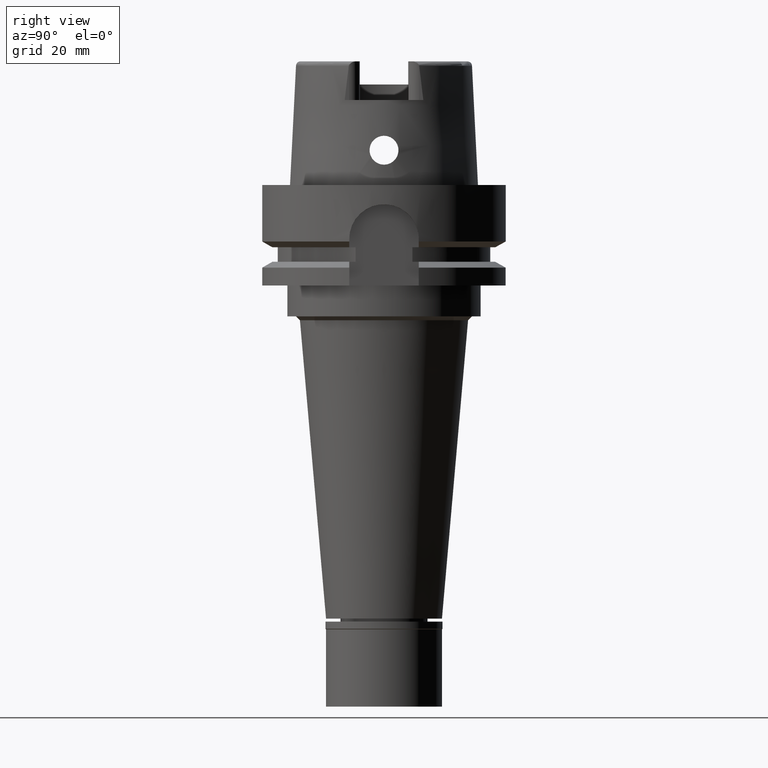
[diagram: clean part render]
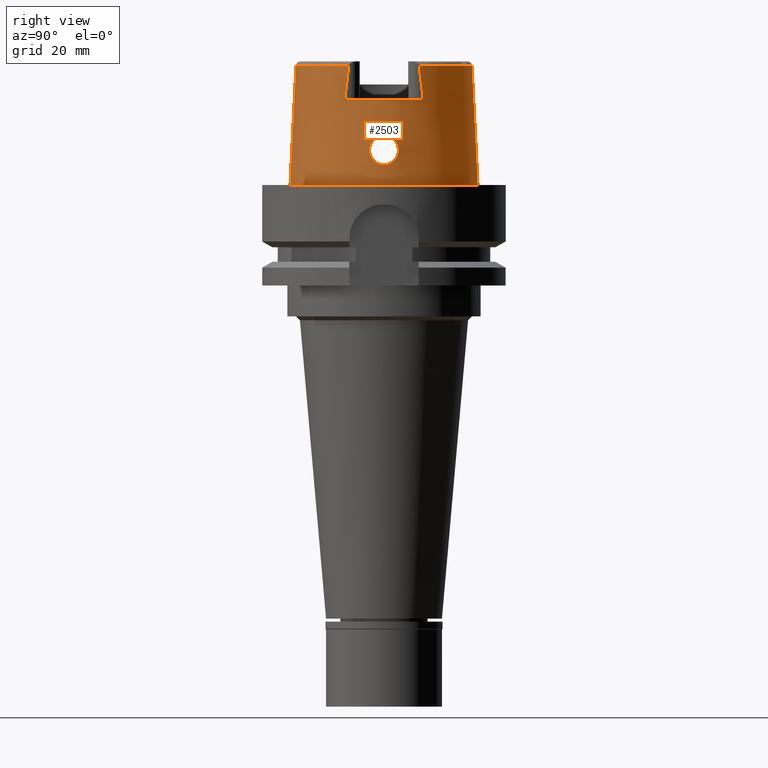
[diagram: same view with one face highlighted and labeled with its STEP entity id]
A machine part, right view. The second image highlights one B-rep face of the part: STEP entity #2503.
In plain terms, the highlighted conical surface has half-angle 2.862 deg.
Its self-contained STEP definition (entity closure, byte-faithful):
#67 = CARTESIAN_POINT ( 'NONE',  ( 20.87000000000000099, 10.16755860605000095, 22.00000000000000000 ) ) ;
#68 = VERTEX_POINT ( 'NONE', #2163 ) ;
#100 = DIRECTION ( 'NONE',  ( 0.0000000000000000000, 0.0000000000000000000, -1.000000000000000000 ) ) ;
#124 = CARTESIAN_POINT ( 'NONE',  ( 23.99741052300606725, 1.409557545798486800, 5.524987733621385289 ) ) ;
#153 = CARTESIAN_POINT ( 'NONE',  ( 23.56979158351773762, 3.750036884178498120, 8.975423932546910066 ) ) ;
#182 = CARTESIAN_POINT ( 'NONE',  ( 23.98170386270929910, 1.606147211030262589, 5.605672157478030826 ) ) ;
#195 = CARTESIAN_POINT ( 'NONE',  ( 23.65618161746512982, -1.223503328674441226, 12.54583698877323883 ) ) ;
#204 = CARTESIAN_POINT ( 'NONE',  ( 23.68855773261116227, 3.450345891737976345, 7.530735757492522886 ) ) ;
#213 = EDGE_CURVE ( 'NONE', #3674, #1727, #371, .T. ) ;
#221 = CARTESIAN_POINT ( 'NONE',  ( 23.62000188272170931, -2.035425920932052435, 12.14961753302927150 ) ) ;
#231 = CARTESIAN_POINT ( 'NONE',  ( 23.82389925732656266, 2.813300137743125262, 6.517453740641115267 ) ) ;
#274 = CARTESIAN_POINT ( 'NONE',  ( 23.53728686232629030, -3.562649023846653495, 10.19725586423751906 ) ) ;
#283 = CARTESIAN_POINT ( 'NONE',  ( 23.60286895030067811, 2.335580404643407881, 11.93450531687260785 ) ) ;
#302 = CARTESIAN_POINT ( 'NONE',  ( 23.98860891886405611, -1.516794078512106347, 5.570259398225311465 ) ) ;
#310 = CARTESIAN_POINT ( 'NONE',  ( 23.55631868313840371, 3.749673725861495388, 9.242500227184164530 ) ) ;
#331 = CARTESIAN_POINT ( 'NONE',  ( 23.65218525758844592, -3.578295389610691490, 7.876444168300636761 ) ) ;
#355 = EDGE_CURVE ( 'NONE', #68, #2626, #508, .T. ) ;
#361 = CARTESIAN_POINT ( 'NONE',  ( 0.002481821280839999633, 22.77198688789000158, 30.85992712280000205 ) ) ;
#364 = CARTESIAN_POINT ( 'NONE',  ( 23.83799574183585079, -2.727673456138496100, 6.426295646156834351 ) ) ;
#371 = B_SPLINE_CURVE_WITH_KNOTS ( 'NONE', 3,
 ( #1543, #3997, #1094, #3203, #4852, #3124, #195, #4776, #3569, #616, #3943, #4881, #4418, #669, #643, #2707, #1849, #4367, #221, #3592, #4023, #1431, #5276, #2814, #4474, #591, #2295, #1883, #3544, #5221, #1460, #2732, #3151, #4803, #1039, #4393, #1598, #2017, #2074, #2105, #2898, #274, #4106, #3751, #3669, #3309, #5418, #394, #4587, #2403, #5445, #4969, #3644, #4908, #331, #2462, #1152, #1211, #754, #3696, #4995, #1265, #4164, #1990, #3256, #2436, #5364, #1684, #5391, #2049, #4533, #2848, #4559, #3284, #1630, #364, #782, #5333, #4944, #1180, #4503, #2491, #2872, #729, #2950, #302, #4615, #4135, #1659, #3725, #4079, #1567, #3331 ),
 .UNSPECIFIED., .F., .F.,
 ( 4, 2, 2, 1, 1, 1, 2, 2, 2, 2, 1, 1, 2, 2, 2, 1, 1, 2, 2, 2, 2, 1, 1, 1, 2, 2, 2, 2, 1, 2, 2, 2, 2, 1, 1, 1, 2, 2, 2, 2, 1, 1, 2, 2, 2, 1, 1, 2, 2, 2, 2, 1, 1, 1, 2, 2, 4 ),
 ( 0.0000000000000000000, 0.06249999999999586442, 0.09374999999999376887, 0.1093749999999926725, 0.1171874999999920758, 0.1210937499999918121, 0.1230468749999916872, 0.1249999999999915762, 0.1562499999999886202, 0.1718749999999871214, 0.1796874999999863998, 0.1835937499999858724, 0.1855468749999855949, 0.1874999999999852895, 0.2187499999999829026, 0.2343749999999816536, 0.2421874999999809597, 0.2460937499999804878, 0.2499999999999800437, 0.3124999999999716893, 0.3437499999999674705, 0.3593749999999655831, 0.3671874999999648059, 0.3710937499999644729, 0.3730468749999645284, 0.3749999999999646394, 0.4374999999999668043, 0.4687499999999680256, 0.4843749999999686917, 0.4921874999999691913, 0.4999999999999696909, 0.5624999999999723554, 0.5937499999999736877, 0.6093749999999744649, 0.6171874999999747979, 0.6210937499999750200, 0.6230468749999751310, 0.6249999999999751310, 0.6562499999999756861, 0.6718749999999757971, 0.6796874999999757971, 0.6835937499999759082, 0.6855468749999759082, 0.6874999999999760192, 0.7187499999999791278, 0.7343749999999805711, 0.7421874999999812372, 0.7460937499999815703, 0.7499999999999820144, 0.8124999999999884537, 0.8437499999999915623, 0.8593749999999932276, 0.8671874999999940048, 0.8710937499999944489, 0.8730468749999945599, 0.8749999999999945599, 1.000000000000000000 ),
 .UNSPECIFIED. ) ;
#394 = CARTESIAN_POINT ( 'NONE',  ( 23.56278099270956616, -3.748201672074407131, 9.119866509858711723 ) ) ;
#475 = ORIENTED_EDGE ( 'NONE', *, *, #355, .F. ) ;
#508 = B_SPLINE_CURVE_WITH_KNOTS ( 'NONE', 3,
 ( #1013, #4753, #3415, #3918 ),
 .UNSPECIFIED., .F., .F.,
 ( 4, 4 ),
 ( 0.0000000000000000000, 1.000000000000000000 ),
 .UNSPECIFIED. ) ;
#529 = CONICAL_SURFACE ( 'NONE', #3605, 23.54351105844999736, 0.04996004983832824653 ) ;
#575 = CARTESIAN_POINT ( 'NONE',  ( 23.65754914882854010, 3.566084928893071826, 7.809417686864742691 ) ) ;
#591 = CARTESIAN_POINT ( 'NONE',  ( 23.59335130442918071, -2.500895128699275105, 11.79546913096707428 ) ) ;
#616 = CARTESIAN_POINT ( 'NONE',  ( 23.64936481907054855, -1.407256274803444285, 12.47594562090911730 ) ) ;
#627 = CARTESIAN_POINT ( 'NONE',  ( 23.85936835845046744, 2.596971949325992401, 6.294668982619858966 ) ) ;
#643 = CARTESIAN_POINT ( 'NONE',  ( 23.63217484651149647, -1.797778674615635675, 12.29154642699170097 ) ) ;
#654 = EDGE_CURVE ( 'NONE', #1938, #2626, #1885, .T. ) ;
#669 = CARTESIAN_POINT ( 'NONE',  ( 23.63992076726151481, -1.634345342748828589, 12.37735983815962371 ) ) ;
#677 = ORIENTED_EDGE ( 'NONE', *, *, #4184, .T. ) ;
#678 = CARTESIAN_POINT ( 'NONE',  ( 23.54795101418594072, 3.726731211790008658, 9.483740643491037403 ) ) ;
#729 = CARTESIAN_POINT ( 'NONE',  ( 23.97390213269369141, -1.680134168139940432, 5.646949681227922291 ) ) ;
#735 = CARTESIAN_POINT ( 'NONE',  ( 23.62817011169800097, 1.885504624516870953, 12.24383662026350272 ) ) ;
#754 = CARTESIAN_POINT ( 'NONE',  ( 23.68088708443411505, -3.478847398744863817, 7.599932335996524735 ) ) ;
#782 = CARTESIAN_POINT ( 'NONE',  ( 23.84336134369346993, -2.695658929912994939, 6.393055510157075183 ) ) ;
#792 = CARTESIAN_POINT ( 'NONE',  ( 23.63968805518191374, 1.640290316339456433, 12.37324556414428933 ) ) ;
#932 = CARTESIAN_POINT ( 'NONE',  ( 24.05252611746999847, 0.0000000000000000000, 5.250000000000000000 ) ) ;
#961 = CARTESIAN_POINT ( 'NONE',  ( 23.99669686191764484, 1.418549355557610525, 5.528652208453263661 ) ) ;
#991 = CARTESIAN_POINT ( 'NONE',  ( 23.79537487801156104, 2.969081839856313465, 6.708526363462557818 ) ) ;
#1013 = CARTESIAN_POINT ( 'NONE',  ( 20.87000527243999670, -9.110771420352000050, 30.85992623711999983 ) ) ;
#1024 = ORIENTED_EDGE ( 'NONE', *, *, #2031, .F. ) ;
#1039 = CARTESIAN_POINT ( 'NONE',  ( 23.54351736285887853, -3.352606904099580287, 10.68101992700658620 ) ) ;
#1047 = CARTESIAN_POINT ( 'NONE',  ( 23.71825165375690148, 3.331218674133720636, 7.276832086030188940 ) ) ;
#1079 = CARTESIAN_POINT ( 'NONE',  ( 23.57913388135730770, 3.745727953488152462, 8.805494264415404615 ) ) ;
#1094 = CARTESIAN_POINT ( 'NONE',  ( 23.67506699233743106, -0.4637114333028086732, 12.72933735181869608 ) ) ;
#1096 = CARTESIAN_POINT ( 'NONE',  ( 0.0000000000000000000, 24.31503482328999866, -7.389644451905000534E-13 ) ) ;
#1105 = CARTESIAN_POINT ( 'NONE',  ( 23.55727292430831454, 3.089654960027925501, 11.12871882642762422 ) ) ;
#1152 = CARTESIAN_POINT ( 'NONE',  ( 23.67256478189325364, -3.509053511853261309, 7.676768709800048995 ) ) ;
#1161 = CARTESIAN_POINT ( 'NONE',  ( 23.64333745458698743, 1.554894452985534192, 12.41259331056408932 ) ) ;
#1180 = CARTESIAN_POINT ( 'NONE',  ( 23.88313405248300114, -2.454470983817845120, 6.151043544537373897 ) ) ;
#1211 = CARTESIAN_POINT ( 'NONE',  ( 23.67836587817247107, -3.488093159791483711, 7.622979706065718730 ) ) ;
#1219 = CARTESIAN_POINT ( 'NONE',  ( 23.67751368057999883, 0.0000000000000000000, 12.75000000000000000 ) ) ;
#1242 = CARTESIAN_POINT ( 'NONE',  ( 23.67751368057999883, 0.0000000000000000000, 12.75000000000000000 ) ) ;
#1265 = CARTESIAN_POINT ( 'NONE',  ( 23.69493469860936941, -3.426660438893187610, 7.473140576681614355 ) ) ;
#1319 = CARTESIAN_POINT ( 'NONE',  ( 20.87000000000000099, 10.16755860605000095, 22.00000000000000000 ) ) ;
#1347 = CARTESIAN_POINT ( 'NONE',  ( 0.0000000000000000000, 0.0000000000000000000, 15.42996356139999925 ) ) ;
#1370 = FACE_OUTER_BOUND ( 'NONE', #2990, .T. ) ;
#1430 = CARTESIAN_POINT ( 'NONE',  ( 0.0000000000000000000, 0.0000000000000000000, -7.389644451905000534E-13 ) ) ;
#1431 = CARTESIAN_POINT ( 'NONE',  ( 23.61751962360115797, -2.081209400607333837, 12.11947536603371134 ) ) ;
#1460 = CARTESIAN_POINT ( 'NONE',  ( 23.57093148059700027, -2.851312322137704136, 11.45125664498585927 ) ) ;
#1464 = CARTESIAN_POINT ( 'NONE',  ( 0.0000000000000000000, -22.77198729362000051, 30.85992712280000205 ) ) ;
#1471 = CARTESIAN_POINT ( 'NONE',  ( 23.80252444912367338, 2.931015324959349133, 6.660032572112591254 ) ) ;
#1493 = CARTESIAN_POINT ( 'NONE',  ( 24.03376492118275820, 0.8302503275804989924, 5.341037634394288247 ) ) ;
#1527 = CARTESIAN_POINT ( 'NONE',  ( 23.87245292111339978, 2.511601212713352904, 6.215112261055378617 ) ) ;
#1543 = CARTESIAN_POINT ( 'NONE',  ( 23.67751368057999883, 0.0000000000000000000, 12.75000000000000000 ) ) ;
#1551 = CARTESIAN_POINT ( 'NONE',  ( 23.58283423382094313, 2.667714300202540301, 11.63550400016476694 ) ) ;
#1557 = VERTEX_POINT ( 'NONE', #3416 ) ;
#1567 = CARTESIAN_POINT ( 'NONE',  ( 24.05252611746999492, -0.4682035850658039511, 5.249999999999996447 ) ) ;
#1579 = CARTESIAN_POINT ( 'NONE',  ( 23.58205150924872129, 2.680327882225578939, 11.62267484949121688 ) ) ;
#1589 = VERTEX_POINT ( 'NONE', #1464 ) ;
#1593 = LINE ( 'NONE', #361, #1665 ) ;
#1598 = CARTESIAN_POINT ( 'NONE',  ( 23.54069510199738957, -3.429599916486623101, 10.51711702627600076 ) ) ;
#1604 = VERTEX_POINT ( 'NONE', #3495 ) ;
#1606 = CARTESIAN_POINT ( 'NONE',  ( 23.56910458896344451, 2.890915830154841437, 11.38946705694332451 ) ) ;
#1630 = CARTESIAN_POINT ( 'NONE',  ( 23.82549211477736151, -2.800933865507947651, 6.505226040571943535 ) ) ;
#1635 = CIRCLE ( 'NONE', #2955, 22.77198729362001117 ) ;
#1640 = CARTESIAN_POINT ( 'NONE',  ( 23.62277832711500380, 1.989117033354610209, 12.18120502760653423 ) ) ;
#1659 = CARTESIAN_POINT ( 'NONE',  ( 23.99475839488865603, -1.442550788870264888, 5.538556383455324195 ) ) ;
#1663 = ORIENTED_EDGE ( 'NONE', *, *, #3399, .T. ) ;
#1665 = VECTOR ( 'NONE', #2893, 1000.000000000000000 ) ;
#1670 = ORIENTED_EDGE ( 'NONE', *, *, #3555, .F. ) ;
#1684 = CARTESIAN_POINT ( 'NONE',  ( 23.75809613586264035, -3.153638958302001249, 6.970814125703146402 ) ) ;
#1727 = VERTEX_POINT ( 'NONE', #932 ) ;
#1831 = CARTESIAN_POINT ( 'NONE',  ( 23.85626869006080852, 2.616580360091303348, 6.313721774121626495 ) ) ;
#1849 = CARTESIAN_POINT ( 'NONE',  ( 23.62502149924458905, -1.940117837755635621, 12.20929256187719147 ) ) ;
#1873 = VECTOR ( 'NONE', #2103, 1000.000000000000000 ) ;
#1883 = CARTESIAN_POINT ( 'NONE',  ( 23.58633481952916355, -2.612806086781061854, 11.68997785618207885 ) ) ;
#1885 = CIRCLE ( 'NONE', #3370, 23.21499834174998966 ) ;
#1894 = CARTESIAN_POINT ( 'NONE',  ( 23.91319098594624037, 2.220985600379818070, 5.975451582844085507 ) ) ;
#1938 = VERTEX_POINT ( 'NONE', #67 ) ;
#1941 = CARTESIAN_POINT ( 'NONE',  ( 23.86650366459252481, 2.551096030938110548, 6.251058165383954979 ) ) ;
#1977 = CARTESIAN_POINT ( 'NONE',  ( 0.0000000000000000000, -24.31503482328999866, -3.410605131648000255E-13 ) ) ;
#1990 = CARTESIAN_POINT ( 'NONE',  ( 23.72722208280240608, -3.293879360053062921, 7.206501332572136320 ) ) ;
#2000 = CARTESIAN_POINT ( 'NONE',  ( 23.53847083392615147, 3.572112042969594725, 10.14297195859395551 ) ) ;
#2017 = CARTESIAN_POINT ( 'NONE',  ( 23.54014370228765785, -3.448436697796323003, 10.47346664705865926 ) ) ;
#2028 = CARTESIAN_POINT ( 'NONE',  ( 23.64687553256864661, 1.469725341914942307, 12.45014572883841986 ) ) ;
#2031 = EDGE_CURVE ( 'NONE', #1938, #1557, #5373, .T. ) ;
#2049 = CARTESIAN_POINT ( 'NONE',  ( 23.76311803917417720, -3.129629745815275310, 6.934087354893087252 ) ) ;
#2051 = DIRECTION ( 'NONE',  ( 0.0000000000000000000, 0.0000000000000000000, -1.000000000000000000 ) ) ;
#2057 = CARTESIAN_POINT ( 'NONE',  ( 23.57602863934530646, 2.777759321683797911, 11.51947629268215856 ) ) ;
#2074 = CARTESIAN_POINT ( 'NONE',  ( 23.53993061427025069, -3.456305277185066416, 10.45481928213091294 ) ) ;
#2082 = CARTESIAN_POINT ( 'NONE',  ( 23.53967749511005536, 3.465959308388742333, 10.43166505040752767 ) ) ;
#2097 = EDGE_CURVE ( 'NONE', #3289, #4821, #4575, .T. ) ;
#2103 = DIRECTION ( 'NONE',  ( 8.032179027582384478E-05, -0.04993928193351242217, -0.9987522523971473776 ) ) ;
#2105 = CARTESIAN_POINT ( 'NONE',  ( 23.53979371695728773, -3.461505962224951105, 10.44240139567263270 ) ) ;
#2134 = DIRECTION ( 'NONE',  ( 0.8989877876694615244, 0.4379736951246811505, 0.0000000000000000000 ) ) ;
#2163 = CARTESIAN_POINT ( 'NONE',  ( 20.87000527243999670, -9.110771420352000050, 30.85992623711999983 ) ) ;
#2187 = DIRECTION ( 'NONE',  ( 0.0000000000000000000, -1.000000000000000000, 0.0000000000000000000 ) ) ;
#2251 = CARTESIAN_POINT ( 'NONE',  ( 24.02790204734300517, 0.9499289938177079007, 5.370180686946912196 ) ) ;
#2279 = CARTESIAN_POINT ( 'NONE',  ( 23.57120184079807146, 3.749755573837370459, 8.948554177804135534 ) ) ;
#2295 = CARTESIAN_POINT ( 'NONE',  ( 23.58844020497475924, -2.579644544118255389, 11.72205615858604766 ) ) ;
#2332 = EDGE_CURVE ( 'NONE', #1589, #3289, #3380, .T. ) ;
#2335 = CARTESIAN_POINT ( 'NONE',  ( 23.92638814724481122, 2.115561554813299328, 5.901300326533409191 ) ) ;
#2370 = DIRECTION ( 'NONE',  ( 0.0000000000000000000, 0.0000000000000000000, -1.000000000000000000 ) ) ;
#2385 = CARTESIAN_POINT ( 'NONE',  ( 23.53924988573291088, 3.484413238315576145, 10.38628969556312498 ) ) ;
#2403 = CARTESIAN_POINT ( 'NONE',  ( 23.56707827843494130, -3.749991273092522892, 9.029127254930608970 ) ) ;
#2436 = CARTESIAN_POINT ( 'NONE',  ( 23.74548095048756124, -3.212431580616287086, 7.065089212975846245 ) ) ;
#2462 = CARTESIAN_POINT ( 'NONE',  ( 23.66128946265986954, -3.548542694519893015, 7.784353515451841510 ) ) ;
#2491 = CARTESIAN_POINT ( 'NONE',  ( 23.94785029665017007, -1.936134681749981823, 5.786112351796959707 ) ) ;
#2499 = CARTESIAN_POINT ( 'NONE',  ( 23.64574116981760454, 1.497417026802877915, 12.43820187177436765 ) ) ;
#2503 = ADVANCED_FACE ( 'NONE', ( #1370, #3859 ), #529, .T. ) ;
#2626 = VERTEX_POINT ( 'NONE', #4772 ) ;
#2656 = CARTESIAN_POINT ( 'NONE',  ( 20.87000000000000099, 9.459419187967647247, 28.07088142031913591 ) ) ;
#2666 = CARTESIAN_POINT ( 'NONE',  ( 23.85419298223590445, 2.629639852072348294, 6.326504584623962479 ) ) ;
#2691 = CARTESIAN_POINT ( 'NONE',  ( 23.59610519306026788, 3.723760955760621272, 8.541686959841060300 ) ) ;
#2707 = CARTESIAN_POINT ( 'NONE',  ( 23.62941826960100755, -1.853894653924990088, 12.26037398169900605 ) ) ;
#2715 = CARTESIAN_POINT ( 'NONE',  ( 24.05252611746999847, 0.0000000000000000000, 5.250000000000000000 ) ) ;
#2732 = CARTESIAN_POINT ( 'NONE',  ( 23.56097843016044280, -3.013414991673339038, 11.24542846782674843 ) ) ;
#2770 = CARTESIAN_POINT ( 'NONE',  ( 24.05252611746999136, 0.2332082558146014728, 5.249999999999998224 ) ) ;
#2798 = CARTESIAN_POINT ( 'NONE',  ( 23.54081187450104551, 3.655762180319634957, 9.844340283723550300 ) ) ;
#2814 = CARTESIAN_POINT ( 'NONE',  ( 23.60596895125004835, -2.288633734427802047, 11.97317885727141551 ) ) ;
#2848 = CARTESIAN_POINT ( 'NONE',  ( 23.77928022297826161, -3.051549592981439574, 6.816953960095912812 ) ) ;
#2872 = CARTESIAN_POINT ( 'NONE',  ( 23.95890165967158936, -1.832947053381541291, 5.726470688664103470 ) ) ;
#2880 = CARTESIAN_POINT ( 'NONE',  ( 23.61434003776745172, 2.137342432453320118, 12.08185095785749574 ) ) ;
#2893 = DIRECTION ( 'NONE',  ( -8.032179027593385064E-05, 0.04993928193351242217, -0.9987522523971473776 ) ) ;
#2898 = CARTESIAN_POINT ( 'NONE',  ( 23.53973886479748501, -3.463638976950670134, 10.43727761456311498 ) ) ;
#2907 = CARTESIAN_POINT ( 'NONE',  ( 23.53944852190178239, 3.475555214846429042, 10.40821807722830883 ) ) ;
#2950 = CARTESIAN_POINT ( 'NONE',  ( 23.98100822632722995, -1.604214797326385389, 5.609672425873479362 ) ) ;
#2955 = AXIS2_PLACEMENT_3D ( 'NONE', #4237, #100, #4267 ) ;
#2990 = EDGE_LOOP ( 'NONE', ( #475, #1663, #3337, #3980, #3873, #677, #1024, #4121 ) ) ;
#3011 = ORIENTED_EDGE ( 'NONE', *, *, #213, .F. ) ;
#3065 = DIRECTION ( 'NONE',  ( 0.0000000000000000000, 0.0000000000000000000, -1.000000000000000000 ) ) ;
#3091 = DIRECTION ( 'NONE',  ( 0.0000000000000000000, -1.000000000000000000, 0.0000000000000000000 ) ) ;
#3107 = CARTESIAN_POINT ( 'NONE',  ( 23.60482830942745025, 3.707230106430950300, 8.421915893668060704 ) ) ;
#3124 = CARTESIAN_POINT ( 'NONE',  ( 23.65916351876075296, -1.131568507320630301, 12.57576969413208801 ) ) ;
#3151 = CARTESIAN_POINT ( 'NONE',  ( 23.55001278306518131, -3.213459767549337265, 10.93680304919830348 ) ) ;
#3160 = CARTESIAN_POINT ( 'NONE',  ( 23.78102646569836409, 3.042778602954726352, 6.807331130309098199 ) ) ;
#3187 = CARTESIAN_POINT ( 'NONE',  ( 24.00419405125347083, 1.321269042240415637, 5.490228995178274118 ) ) ;
#3203 = CARTESIAN_POINT ( 'NONE',  ( 23.66772692760973129, -0.8260351870377574679, 12.65995726942773913 ) ) ;
#3211 = B_SPLINE_CURVE_WITH_KNOTS ( 'NONE', 3,
 ( #2715, #2770, #3924, #1493, #2251, #3553, #3601, #3187, #3528, #3578, #124, #961, #182, #5258, #2335, #1894, #4427, #4006, #1527, #1941, #627, #1831, #2666, #5232, #3895, #231, #1471, #991, #3160, #4812, #5204, #3982, #1047, #3499, #4759, #5287, #204, #575, #5180, #3107, #2691, #4838, #1079, #4348, #2279, #153, #310, #678, #2798, #4060, #2000, #4568, #3676, #2385, #2907, #4455, #2082, #5344, #4512, #1105, #3652, #1606, #4116, #2057, #5374, #4922, #1579, #1551, #3315, #5314, #4033, #283, #3706, #5398, #2880, #1640, #735, #4951, #792, #1161, #2499, #2028, #4977, #3267, #1219 ),
 .UNSPECIFIED., .F., .F.,
 ( 4, 2, 2, 1, 1, 1, 2, 2, 2, 2, 2, 1, 1, 2, 2, 2, 2, 2, 2, 1, 2, 2, 2, 2, 1, 2, 2, 2, 2, 1, 1, 1, 2, 2, 2, 2, 2, 1, 1, 2, 2, 2, 2, 2, 2, 1, 2, 2, 4 ),
 ( 0.0000000000000000000, 0.06249999999999895917, 0.09374999999999845957, 0.1093749999999981543, 0.1171874999999979877, 0.1210937499999979461, 0.1230468749999978767, 0.1249999999999978212, 0.1874999999999976963, 0.2187499999999976130, 0.2343749999999974742, 0.2421874999999974742, 0.2460937499999974465, 0.2480468749999974187, 0.2499999999999973910, 0.2812499999999963363, 0.2968749999999957812, 0.3124999999999952260, 0.3437499999999938938, 0.3593749999999931721, 0.3671874999999929501, 0.3749999999999927280, 0.4374999999999908407, 0.4687499999999901190, 0.4843749999999898415, 0.4921874999999896749, 0.4999999999999895639, 0.5624999999999888978, 0.5937499999999885647, 0.6093749999999886757, 0.6171874999999886757, 0.6210937499999890088, 0.6230468749999888978, 0.6249999999999886757, 0.6874999999999928946, 0.7187499999999951150, 0.7343749999999962252, 0.7421874999999967804, 0.7460937499999968914, 0.7480468749999970024, 0.7499999999999970024, 0.7812499999999977796, 0.7968749999999980016, 0.8124999999999983347, 0.8437499999999987788, 0.8593749999999990008, 0.8671874999999991118, 0.8749999999999992228, 1.000000000000000000 ),
 .UNSPECIFIED. ) ;
#3256 = CARTESIAN_POINT ( 'NONE',  ( 23.73431411231759469, -3.262931481383348764, 7.150631512291119485 ) ) ;
#3267 = CARTESIAN_POINT ( 'NONE',  ( 23.67751368057998818, 0.4544704546232906095, 12.74999999999999822 ) ) ;
#3284 = CARTESIAN_POINT ( 'NONE',  ( 23.81480233834313864, -2.861202117752095653, 6.575168320469930272 ) ) ;
#3289 = VERTEX_POINT ( 'NONE', #1977 ) ;
#3309 = CARTESIAN_POINT ( 'NONE',  ( 23.55530539391236644, -3.738556810819011478, 9.298850150688293681 ) ) ;
#3315 = CARTESIAN_POINT ( 'NONE',  ( 23.58328866315468630, 2.660396129912620644, 11.64288689494395967 ) ) ;
#3330 = CARTESIAN_POINT ( 'NONE',  ( -0.002481821280835999795, -22.77198688789000158, 30.85992712280000205 ) ) ;
#3331 = CARTESIAN_POINT ( 'NONE',  ( 24.05252611746999847, 0.0000000000000000000, 5.250000000000000000 ) ) ;
#3337 = ORIENTED_EDGE ( 'NONE', *, *, #2332, .T. ) ;
#3370 = AXIS2_PLACEMENT_3D ( 'NONE', #4563, #2051, #2134 ) ;
#3380 = LINE ( 'NONE', #3330, #1873 ) ;
#3399 = EDGE_CURVE ( 'NONE', #68, #1589, #1635, .T. ) ;
#3415 = CARTESIAN_POINT ( 'NONE',  ( 20.87000000000000099, -9.811228181990475861, 25.12030646021867142 ) ) ;
#3416 = CARTESIAN_POINT ( 'NONE',  ( 20.86994457043000040, 9.110917567833000774, 30.85992712280000205 ) ) ;
#3495 = CARTESIAN_POINT ( 'NONE',  ( 0.0000000000000000000, 22.77198729362000051, 30.85992712280000205 ) ) ;
#3499 = CARTESIAN_POINT ( 'NONE',  ( 23.70816712741318710, 3.373459330732675898, 7.360135962499443352 ) ) ;
#3528 = CARTESIAN_POINT ( 'NONE',  ( 24.00028241511352434, 1.372815958701181449, 5.510255814242761119 ) ) ;
#3544 = CARTESIAN_POINT ( 'NONE',  ( 23.58493108955731898, -2.634781396570550882, 11.66845713965126663 ) ) ;
#3553 = CARTESIAN_POINT ( 'NONE',  ( 24.01734887443144473, 1.128658019607635676, 5.423340327980232800 ) ) ;
#3555 = EDGE_CURVE ( 'NONE', #1727, #3674, #3211, .T. ) ;
#3569 = CARTESIAN_POINT ( 'NONE',  ( 23.65026082306563637, -1.384310148578976829, 12.48520600127733360 ) ) ;
#3578 = CARTESIAN_POINT ( 'NONE',  ( 23.99856477629327145, 1.394866584811591537, 5.519064789891183764 ) ) ;
#3592 = CARTESIAN_POINT ( 'NONE',  ( 23.61879629123012947, -2.057734708634025633, 12.13501317375315658 ) ) ;
#3601 = CARTESIAN_POINT ( 'NONE',  ( 24.01163257243768356, 1.217823858187189412, 5.452279870741745249 ) ) ;
#3605 = AXIS2_PLACEMENT_3D ( 'NONE', #1347, #3065, #3091 ) ;
#3613 = DIRECTION ( 'NONE',  ( 0.0000000000000000000, 1.000000000000000000, 0.0000000000000000000 ) ) ;
#3644 = CARTESIAN_POINT ( 'NONE',  ( 23.62407932443633030, -3.661718130674890048, 8.181886839494611152 ) ) ;
#3652 = CARTESIAN_POINT ( 'NONE',  ( 23.56160230294863567, 3.015610782114161559, 11.23302042619985208 ) ) ;
#3669 = CARTESIAN_POINT ( 'NONE',  ( 23.54900819717429172, -3.721293834409896917, 9.478482976848077612 ) ) ;
#3674 = VERTEX_POINT ( 'NONE', #1242 ) ;
#3676 = CARTESIAN_POINT ( 'NONE',  ( 23.53886039849949086, 3.504568780246597015, 10.33500209898781286 ) ) ;
#3696 = CARTESIAN_POINT ( 'NONE',  ( 23.68257567130675412, -3.472624925467570733, 7.584569035747979804 ) ) ;
#3706 = CARTESIAN_POINT ( 'NONE',  ( 23.60568910285274669, 2.287295108011637712, 11.97229513510515275 ) ) ;
#3725 = CARTESIAN_POINT ( 'NONE',  ( 23.99515835784144713, -1.437611125519017818, 5.536499203174327199 ) ) ;
#3751 = CARTESIAN_POINT ( 'NONE',  ( 23.54570789615587856, -3.703928491065074713, 9.598613783372227815 ) ) ;
#3859 = FACE_BOUND ( 'NONE', #5455, .T. ) ;
#3873 = ORIENTED_EDGE ( 'NONE', *, *, #5382, .F. ) ;
#3895 = CARTESIAN_POINT ( 'NONE',  ( 23.83805058928389187, 2.730133117203970006, 6.426273760224796128 ) ) ;
#3899 = AXIS2_PLACEMENT_3D ( 'NONE', #4554, #2370, #3613 ) ;
#3918 = CARTESIAN_POINT ( 'NONE',  ( 20.87000000000000099, -10.16755860605000095, 22.00000000000000000 ) ) ;
#3924 = CARTESIAN_POINT ( 'NONE',  ( 24.04783581839819462, 0.4716426144665932796, 5.271818400119832049 ) ) ;
#3943 = CARTESIAN_POINT ( 'NONE',  ( 23.64876270438584882, -1.422550190628351974, 12.46971456140619772 ) ) ;
#3980 = ORIENTED_EDGE ( 'NONE', *, *, #2097, .T. ) ;
#3982 = CARTESIAN_POINT ( 'NONE',  ( 23.73862460721654344, 3.243260586670485335, 7.113452140686865377 ) ) ;
#3997 = CARTESIAN_POINT ( 'NONE',  ( 23.67751368058000949, -0.2270527367785824535, 12.75000000000000178 ) ) ;
#4006 = CARTESIAN_POINT ( 'NONE',  ( 23.88412914059203374, 2.432479066590874428, 6.145090706956476190 ) ) ;
#4023 = CARTESIAN_POINT ( 'NONE',  ( 23.61798710721508954, -2.072640985942447056, 12.12517824677480682 ) ) ;
#4033 = CARTESIAN_POINT ( 'NONE',  ( 23.59448695885402358, 2.477570689451469743, 11.81765374097002841 ) ) ;
#4060 = CARTESIAN_POINT ( 'NONE',  ( 23.53933422189671631, 3.626026572432415662, 9.964317727025695959 ) ) ;
#4079 = CARTESIAN_POINT ( 'NONE',  ( 24.03360067099460196, -0.9587316947264099554, 5.338920574265514141 ) ) ;
#4106 = CARTESIAN_POINT ( 'NONE',  ( 23.53850048352144242, -3.633705338737449608, 9.958323758183103891 ) ) ;
#4116 = CARTESIAN_POINT ( 'NONE',  ( 23.57177338731075267, 2.847081383180392056, 11.44160974602868031 ) ) ;
#4121 = ORIENTED_EDGE ( 'NONE', *, *, #654, .T. ) ;
#4123 = AXIS2_PLACEMENT_3D ( 'NONE', #1430, #4775, #2187 ) ;
#4135 = CARTESIAN_POINT ( 'NONE',  ( 23.99375469476860090, -1.454882748763282496, 5.543721527952482298 ) ) ;
#4164 = CARTESIAN_POINT ( 'NONE',  ( 23.70700358205112579, -3.379399917880999915, 7.369886191205571535 ) ) ;
#4184 = EDGE_CURVE ( 'NONE', #1604, #1557, #5416, .T. ) ;
#4237 = CARTESIAN_POINT ( 'NONE',  ( 0.0000000000000000000, 0.0000000000000000000, 30.85992712280000205 ) ) ;
#4267 = DIRECTION ( 'NONE',  ( 0.9164775804687985694, -0.4000860463675992573, 0.0000000000000000000 ) ) ;
#4310 = CARTESIAN_POINT ( 'NONE',  ( 20.86994457043000040, 9.110917567833000774, 30.85992712280000205 ) ) ;
#4348 = CARTESIAN_POINT ( 'NONE',  ( 23.57429877987538447, 3.748539191185924491, 8.891522037772620735 ) ) ;
#4367 = CARTESIAN_POINT ( 'NONE',  ( 23.62275763781868321, -1.983740558704467194, 12.18267102576752769 ) ) ;
#4393 = CARTESIAN_POINT ( 'NONE',  ( 23.54201467875992293, -3.389988276490489394, 10.60494540767220428 ) ) ;
#4418 = CARTESIAN_POINT ( 'NONE',  ( 23.64438630111963491, -1.531983613539876332, 12.42431264486830678 ) ) ;
#4427 = CARTESIAN_POINT ( 'NONE',  ( 23.89161689549368006, 2.379555829666458067, 6.100904176350137931 ) ) ;
#4455 = CARTESIAN_POINT ( 'NONE',  ( 23.53958799336297147, 3.469600978734524332, 10.42282509566117099 ) ) ;
#4474 = CARTESIAN_POINT ( 'NONE',  ( 23.59755830410110278, -2.431103675864329183, 11.85587449638821056 ) ) ;
#4503 = CARTESIAN_POINT ( 'NONE',  ( 23.91154306456590817, -2.246422067455218663, 5.987218365125191788 ) ) ;
#4512 = CARTESIAN_POINT ( 'NONE',  ( 23.54630122449590601, 3.287572051636949766, 10.82044402862209864 ) ) ;
#4533 = CARTESIAN_POINT ( 'NONE',  ( 23.76426679224763561, -3.124098820550467615, 6.925737307060413350 ) ) ;
#4554 = CARTESIAN_POINT ( 'NONE',  ( 0.0000000000000000000, 0.0000000000000000000, 30.85992712280000205 ) ) ;
#4559 = CARTESIAN_POINT ( 'NONE',  ( 23.79345960972440110, -2.978224046665779667, 6.717933730456428165 ) ) ;
#4563 = CARTESIAN_POINT ( 'NONE',  ( 0.0000000000000000000, 0.0000000000000000000, 22.00000000000000000 ) ) ;
#4568 = CARTESIAN_POINT ( 'NONE',  ( 23.53837741267486550, 3.542828549026876050, 10.23197012100523295 ) ) ;
#4575 = CIRCLE ( 'NONE', #4123, 24.31503482328999866 ) ;
#4587 = CARTESIAN_POINT ( 'NONE',  ( 23.56555343089412702, -3.749630948750130255, 9.060427666695735738 ) ) ;
#4615 = CARTESIAN_POINT ( 'NONE',  ( 23.99223682762357157, -1.473405419285841012, 5.551537743789974222 ) ) ;
#4753 = CARTESIAN_POINT ( 'NONE',  ( 20.87000000000000099, -9.458996941411141890, 28.07361520592533921 ) ) ;
#4759 = CARTESIAN_POINT ( 'NONE',  ( 23.69823552664866639, 3.412894739655452536, 7.445766069773447349 ) ) ;
#4772 = CARTESIAN_POINT ( 'NONE',  ( 20.87000000000000099, -10.16755860605000095, 22.00000000000000000 ) ) ;
#4775 = DIRECTION ( 'NONE',  ( 0.0000000000000000000, 0.0000000000000000000, 1.000000000000000000 ) ) ;
#4776 = CARTESIAN_POINT ( 'NONE',  ( 23.65230132283041797, -1.330737351482727426, 12.50621223583266151 ) ) ;
#4803 = CARTESIAN_POINT ( 'NONE',  ( 23.54701822212669882, -3.272998541327051925, 10.83389878186027566 ) ) ;
#4812 = CARTESIAN_POINT ( 'NONE',  ( 23.77366700043457115, 3.079173082249162530, 6.858779674806984694 ) ) ;
#4821 = VERTEX_POINT ( 'NONE', #1096 ) ;
#4838 = CARTESIAN_POINT ( 'NONE',  ( 23.58453806143702636, 3.739855273990334350, 8.718097261074989390 ) ) ;
#4852 = CARTESIAN_POINT ( 'NONE',  ( 23.66466856730652424, -0.9480015217016700690, 12.63044045313849750 ) ) ;
#4881 = CARTESIAN_POINT ( 'NONE',  ( 23.64838886670354867, -1.431954555966970632, 12.46583997596947846 ) ) ;
#4908 = CARTESIAN_POINT ( 'NONE',  ( 23.63472398647424555, -3.632551116256248047, 8.060119796567347450 ) ) ;
#4922 = CARTESIAN_POINT ( 'NONE',  ( 23.58088529909392506, 2.699132753027754461, 11.60341009100745246 ) ) ;
#4944 = CARTESIAN_POINT ( 'NONE',  ( 23.84848252453317485, -2.664876084175447524, 6.361583425384339741 ) ) ;
#4951 = CARTESIAN_POINT ( 'NONE',  ( 23.63590717609944747, 1.723178002157526478, 12.33120601282623241 ) ) ;
#4969 = CARTESIAN_POINT ( 'NONE',  ( 23.59513389443714715, -3.730065015692670016, 8.542758022129486761 ) ) ;
#4977 = CARTESIAN_POINT ( 'NONE',  ( 23.66770947321636598, 0.9495137581037197405, 12.66633947292804763 ) ) ;
#4995 = CARTESIAN_POINT ( 'NONE',  ( 23.68360975932779411, -3.468792754105786802, 7.575212639628516875 ) ) ;
#5180 = CARTESIAN_POINT ( 'NONE',  ( 23.63403274438405433, 3.638170083091758933, 8.058106359198323076 ) ) ;
#5193 = CARTESIAN_POINT ( 'NONE',  ( 20.87000000000000099, 9.811659030624156230, 25.11757557699920085 ) ) ;
#5204 = CARTESIAN_POINT ( 'NONE',  ( 23.75247844388596263, 3.179986791237570998, 7.008842192736954857 ) ) ;
#5221 = CARTESIAN_POINT ( 'NONE',  ( 23.58431437941557007, -2.644385107844696048, 11.65895182874250402 ) ) ;
#5232 = CARTESIAN_POINT ( 'NONE',  ( 23.85298168054951518, 2.637213789784429885, 6.333979974390445911 ) ) ;
#5258 = CARTESIAN_POINT ( 'NONE',  ( 23.96242293413104463, 1.805088116628613459, 5.703893459642088715 ) ) ;
#5276 = CARTESIAN_POINT ( 'NONE',  ( 23.61157157975616627, -2.189802232108307045, 12.04670364032040553 ) ) ;
#5287 = CARTESIAN_POINT ( 'NONE',  ( 23.69164844293434768, 3.438539706540665541, 7.503357657829177185 ) ) ;
#5314 = CARTESIAN_POINT ( 'NONE',  ( 23.58900358616899950, 2.568407614675036754, 11.73510720999079560 ) ) ;
#5333 = CARTESIAN_POINT ( 'NONE',  ( 23.84693994594228528, -2.674180371149306179, 6.371027580574146754 ) ) ;
#5344 = CARTESIAN_POINT ( 'NONE',  ( 23.54167533943242674, 3.387224531552464502, 10.62138329613025611 ) ) ;
#5364 = CARTESIAN_POINT ( 'NONE',  ( 23.75119656804682222, -3.186162049509587479, 7.021884683721477671 ) ) ;
#5373 = B_SPLINE_CURVE_WITH_KNOTS ( 'NONE', 3,
 ( #1319, #5193, #2656, #4310 ),
 .UNSPECIFIED., .F., .F.,
 ( 4, 4 ),
 ( 0.0000000000000000000, 1.000000000000000000 ),
 .UNSPECIFIED. ) ;
#5374 = CARTESIAN_POINT ( 'NONE',  ( 23.57821927899096792, 2.742205991894003603, 11.55832218472673567 ) ) ;
#5382 = EDGE_CURVE ( 'NONE', #1604, #4821, #1593, .T. ) ;
#5391 = CARTESIAN_POINT ( 'NONE',  ( 23.76110266792584724, -3.139288946919262635, 6.948794912531913504 ) ) ;
#5398 = CARTESIAN_POINT ( 'NONE',  ( 23.61138171876325131, 2.188930179217297933, 12.04546251853728833 ) ) ;
#5416 = CIRCLE ( 'NONE', #3899, 22.77198729362000051 ) ;
#5418 = CARTESIAN_POINT ( 'NONE',  ( 23.55879067858401044, -3.744993421196516348, 9.209173547547027994 ) ) ;
#5445 = CARTESIAN_POINT ( 'NONE',  ( 23.57982168259049516, -3.750068239012686711, 8.777296837158186094 ) ) ;
#5455 = EDGE_LOOP ( 'NONE', ( #1670, #3011 ) ) ;